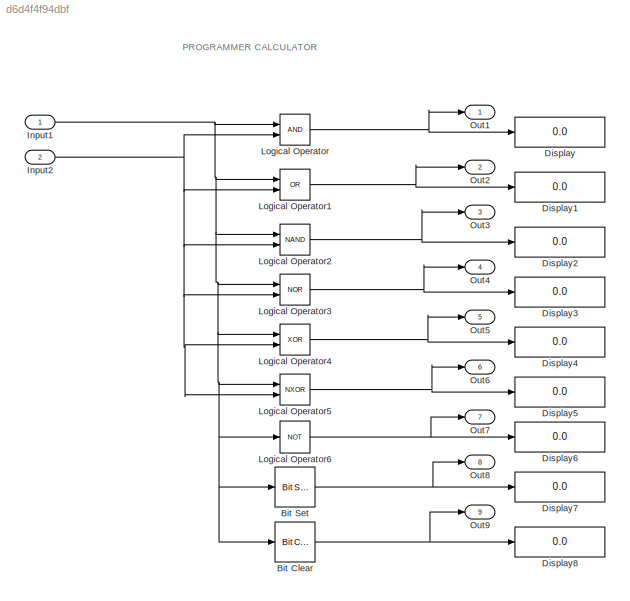
MODEL slx_d6d4f4f94dbf
KIND model
CONFIG AbsTol = auto
CONFIG EnableMultiTasking = off
CONFIG FixedStep = auto
CONFIG MaxStep = auto
CONFIG MinStep = auto
CONFIG RelTol = 1e-3
CONFIG SampleTimeConstraint = Unconstrained
CONFIG Solver = FixedStepDiscrete
CONFIG SolverName = FixedStepDiscrete
CONFIG StartTime = 0.0
CONFIG StopTime = 10.0
BLOCK [Reference] Bit Clear  REF=simulink/Logic and Bit
Operations/Bit Clear
  Ports = [1, 1]
  SourceBlock = simulink/Logic and Bit\nOperations/Bit Clear
  SourceProductBaseCode = SL
  SourceProductName = Simulink
  SourceType = Bit Clear
BLOCK [Reference] Bit Set  REF=simulink/Logic and Bit
Operations/Bit Set
  Ports = [1, 1]
  SourceBlock = simulink/Logic and Bit\nOperations/Bit Set
  SourceProductBaseCode = SL
  SourceProductName = Simulink
  SourceType = Bit Set
BLOCK [Display] Display
  Decimation = 1
  Ports = [1]
BLOCK [Display] Display1
  Decimation = 1
  Ports = [1]
BLOCK [Display] Display2
  Decimation = 1
  Ports = [1]
BLOCK [Display] Display3
  Decimation = 1
  Ports = [1]
BLOCK [Display] Display4
  Decimation = 1
  Ports = [1]
BLOCK [Display] Display5
  Decimation = 1
  Ports = [1]
BLOCK [Display] Display6
  Decimation = 1
  Ports = [1]
BLOCK [Display] Display7
  Decimation = 1
  Ports = [1]
BLOCK [Display] Display8
  Decimation = 1
  Ports = [1]
BLOCK [Inport] Input1
  IconDisplay = Port number
  OutDataTypeStr = boolean
BLOCK [Inport] Input2
  IconDisplay = Port number
  OutDataTypeStr = boolean
  Port = 2
BLOCK [Logic] Logical Operator
  AllPortsSameDT = off
  OutDataTypeStr = boolean
  Ports = [2, 1]
BLOCK [Logic] Logical Operator1
  AllPortsSameDT = off
  Operator = OR
  OutDataTypeStr = boolean
  Ports = [2, 1]
BLOCK [Logic] Logical Operator2
  AllPortsSameDT = off
  Operator = NAND
  OutDataTypeStr = boolean
  Ports = [2, 1]
BLOCK [Logic] Logical Operator3
  AllPortsSameDT = off
  Operator = NOR
  OutDataTypeStr = boolean
  Ports = [2, 1]
BLOCK [Logic] Logical Operator4
  AllPortsSameDT = off
  Operator = XOR
  OutDataTypeStr = boolean
  Ports = [2, 1]
BLOCK [Logic] Logical Operator5
  AllPortsSameDT = off
  Operator = NXOR
  OutDataTypeStr = boolean
  Ports = [2, 1]
BLOCK [Logic] Logical Operator6
  AllPortsSameDT = off
  Operator = NOT
  OutDataTypeStr = boolean
  Ports = [1, 1]
BLOCK [Outport] Out1
  IconDisplay = Port number
  OutDataTypeStr = boolean
BLOCK [Outport] Out2
  IconDisplay = Port number
  OutDataTypeStr = boolean
  Port = 2
BLOCK [Outport] Out3
  IconDisplay = Port number
  OutDataTypeStr = boolean
  Port = 3
BLOCK [Outport] Out4
  IconDisplay = Port number
  OutDataTypeStr = boolean
  Port = 4
BLOCK [Outport] Out5
  IconDisplay = Port number
  OutDataTypeStr = boolean
  Port = 5
BLOCK [Outport] Out6
  IconDisplay = Port number
  OutDataTypeStr = boolean
  Port = 6
BLOCK [Outport] Out7
  IconDisplay = Port number
  OutDataTypeStr = boolean
  Port = 7
BLOCK [Outport] Out8
  IconDisplay = Port number
  OutDataTypeStr = boolean
  Port = 8
BLOCK [Outport] Out9
  IconDisplay = Port number
  OutDataTypeStr = boolean
  Port = 9
ANNOTATION (root): PROGRAMMER CALCULATOR
NET Bit Clear:1 -> Display8:1, Out9:1
NET Bit Set:1 -> Display7:1, Out8:1
NET Input1:1 -> Bit Clear:1, Bit Set:1, Logical Operator1:1, Logical Operator2:1, Logical Operator3:1, Logical Operator4:1, Logical Operator5:1, Logical Operator6:1, Logical Operator:1
NET Input2:1 -> Logical Operator1:2, Logical Operator2:2, Logical Operator3:2, Logical Operator4:2, Logical Operator5:2, Logical Operator:2
NET Logical Operator1:1 -> Display1:1, Out2:1
NET Logical Operator2:1 -> Display2:1, Out3:1
NET Logical Operator3:1 -> Display3:1, Out4:1
NET Logical Operator4:1 -> Display4:1, Out5:1
NET Logical Operator5:1 -> Display5:1, Out6:1
NET Logical Operator6:1 -> Display6:1, Out7:1
NET Logical Operator:1 -> Display:1, Out1:1
note: NET lines group one-source signal fan-out (src -> all destinations, sorted); 1:1 wires keep LINE
